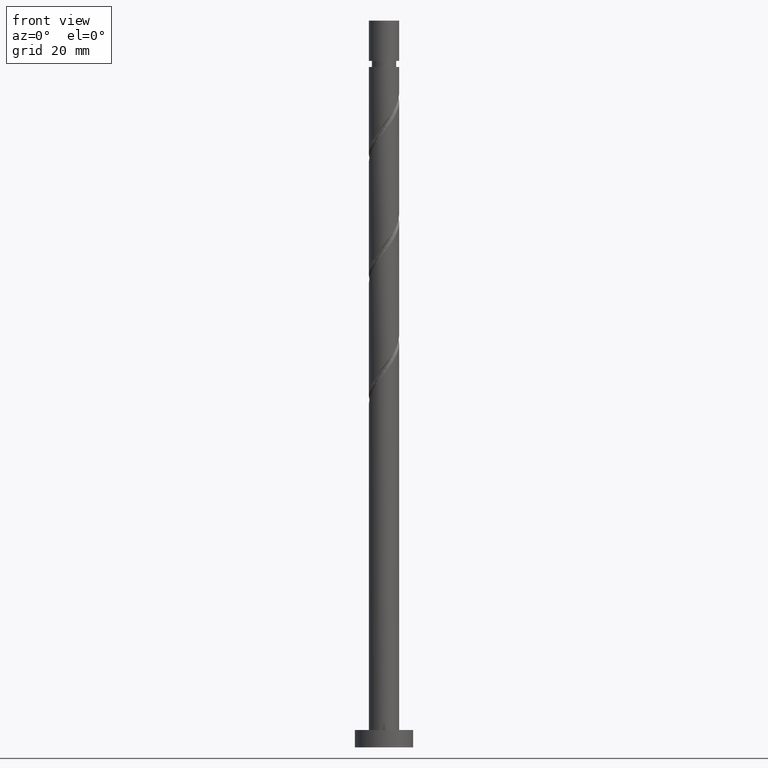
[diagram: clean part render]
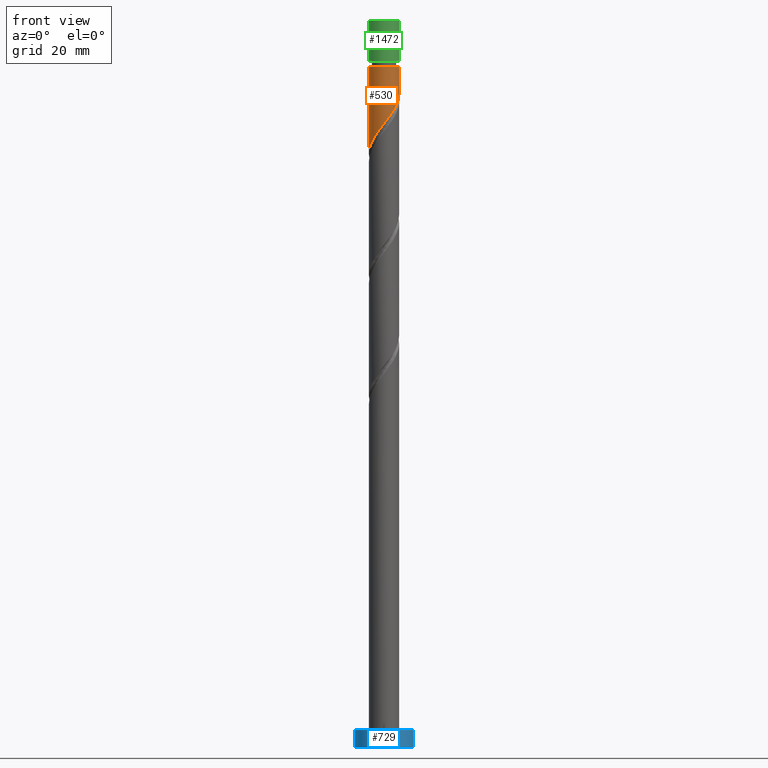
[diagram: same view with three faces highlighted in distinct colors, each labeled with its STEP entity id]
A machine part, front view with three faces highlighted in distinct colors.
Their STEP definitions:

[orange] entity #530 — the highlighted cylindrical surface (edge-blend (fillet) strip) has radius 2.6 mm, axis along (-0, -0, -1).
#11 = CARTESIAN_POINT ( 'NONE',  ( -1.916256930661813795, -1.757259051958636631, 104.5275342190393957 ) ) ;
#32 = CARTESIAN_POINT ( 'NONE',  ( 2.548000000000000043, -0.5173934672954429992, 111.8192008857060529 ) ) ;
#52 = AXIS2_PLACEMENT_3D ( 'NONE', #1224, #363, #605 ) ;
#88 = EDGE_CURVE ( 'NONE', #284, #535, #981, .T. ) ;
#89 = CARTESIAN_POINT ( 'NONE',  ( -0.1138299133485245890, -2.629947074745161206, 107.1317008857060813 ) ) ;
#99 = DIRECTION ( 'NONE',  ( -0.000000000000000000, -0.000000000000000000, -1.000000000000000000 ) ) ;
#114 = EDGE_CURVE ( 'NONE', #542, #284, #401, .T. ) ;
#170 = VERTEX_POINT ( 'NONE', #175 ) ;
#175 = CARTESIAN_POINT ( 'NONE',  ( 2.600000000000000533, 1.394358558838141110E-15, 112.4840033271763389 ) ) ;
#228 = CARTESIAN_POINT ( 'NONE',  ( -2.600000000000000533, -0.1481317173607224480, 102.2568477497169397 ) ) ;
#233 = CARTESIAN_POINT ( 'NONE',  ( -2.194579422111507583, -1.453753770477751894, 104.0067008857060671 ) ) ;
#284 = VERTEX_POINT ( 'NONE', #1159 ) ;
#310 = CARTESIAN_POINT ( 'NONE',  ( 2.466052925254840211, -0.9209570212423616731, 111.2983675523727669 ) ) ;
#331 = LINE ( 'NONE', #1434, #738 ) ;
#356 = DIRECTION ( 'NONE',  ( -0.000000000000000000, -0.000000000000000000, -1.000000000000000000 ) ) ;
#363 = DIRECTION ( 'NONE',  ( -0.000000000000000000, -0.000000000000000000, -1.000000000000000000 ) ) ;
#381 = CARTESIAN_POINT ( 'NONE',  ( 0.000000000000000000, 0.000000000000000000, 125.0000000000000000 ) ) ;
#401 = CIRCLE ( 'NONE', #52, 2.599999999999998312 ) ;
#420 = VECTOR ( 'NONE', #1360, 1000.000000000000000 ) ;
#423 = CARTESIAN_POINT ( 'NONE',  ( 1.453753770477751894, -2.194579422111507583, 109.2150342190394099 ) ) ;
#438 = CARTESIAN_POINT ( 'NONE',  ( 0.2953048731074914834, -2.583175377692922048, 107.6525342190394241 ) ) ;
#448 = ORIENTED_EDGE ( 'NONE', *, *, #942, .F. ) ;
#485 = CARTESIAN_POINT ( 'NONE',  ( -2.365491551376095458, -1.079096715020629427, 103.4858675523727243 ) ) ;
#530 = ADVANCED_FACE ( 'NONE', ( #960 ), #1339, .T. ) ;
#535 = VERTEX_POINT ( 'NONE', #1322 ) ;
#542 = VERTEX_POINT ( 'NONE', #1567 ) ;
#564 = CARTESIAN_POINT ( 'NONE',  ( -1.279445730227240396, -2.263408629347180678, 105.5692008857060671 ) ) ;
#570 = CARTESIAN_POINT ( 'NONE',  ( 2.060764333439522034, -1.637934439212119564, 110.2567008857060671 ) ) ;
#605 = DIRECTION ( 'NONE',  ( -1.000000000000000000, 0.000000000000000000, 0.000000000000000000 ) ) ;
#623 = DIRECTION ( 'NONE',  ( -1.000000000000000000, 0.000000000000000000, 0.000000000000000000 ) ) ;
#666 = CARTESIAN_POINT ( 'NONE',  ( 1.757259051958636631, -1.916256930661813795, 109.7358675523727385 ) ) ;
#701 = CARTESIAN_POINT ( 'NONE',  ( -2.600000000000000533, -1.679227511719051496E-15, 102.0673366605096390 ) ) ;
#707 = CARTESIAN_POINT ( 'NONE',  ( -2.583175377692922048, -0.2953048731074915945, 102.4442008857060813 ) ) ;
#714 = EDGE_LOOP ( 'NONE', ( #768, #1029, #1465, #448 ) ) ;
#738 = VECTOR ( 'NONE', #99, 1000.000000000000000 ) ;
#768 = ORIENTED_EDGE ( 'NONE', *, *, #1196, .F. ) ;
#781 = CARTESIAN_POINT ( 'NONE',  ( 1.079096715020629427, -2.365491551376095458, 108.6942008857060671 ) ) ;
#817 = CARTESIAN_POINT ( 'NONE',  ( -2.536403680640683778, -0.7044396595635079583, 102.9650342190393957 ) ) ;
#912 = CARTESIAN_POINT ( 'NONE',  ( -0.5173934672954428882, -2.548000000000000043, 106.6108675523727101 ) ) ;
#942 = EDGE_CURVE ( 'NONE', #170, #535, #1311, .T. ) ;
#953 = CARTESIAN_POINT ( 'NONE',  ( -2.600000000000000089, 0.000000000000000000, 125.0000000000000000 ) ) ;
#960 = FACE_OUTER_BOUND ( 'NONE', #714, .T. ) ;
#981 = LINE ( 'NONE', #953, #420 ) ;
#1029 = ORIENTED_EDGE ( 'NONE', *, *, #114, .T. ) ;
#1042 = CARTESIAN_POINT ( 'NONE',  ( -1.637934439212119564, -2.060764333439522034, 105.0483675523727669 ) ) ;
#1113 = CARTESIAN_POINT ( 'NONE',  ( 2.600000000000000533, 1.394358558838141110E-15, 112.4840033271763389 ) ) ;
#1159 = CARTESIAN_POINT ( 'NONE',  ( -2.599999999999998312, 0.000000000000000000, 117.0275342190393815 ) ) ;
#1163 = CARTESIAN_POINT ( 'NONE',  ( -0.9209570212423614510, -2.466052925254840211, 106.0900342190393673 ) ) ;
#1196 = EDGE_CURVE ( 'NONE', #542, #170, #331, .T. ) ;
#1200 = CARTESIAN_POINT ( 'NONE',  ( 2.600000000000003197, -0.2613098319673822223, 112.1496987517684971 ) ) ;
#1224 = CARTESIAN_POINT ( 'NONE',  ( 0.000000000000000000, 0.000000000000000000, 117.0275342190393815 ) ) ;
#1279 = CARTESIAN_POINT ( 'NONE',  ( 0.7044396595635075142, -2.536403680640683778, 108.1733675523727243 ) ) ;
#1311 =( BOUNDED_CURVE ( )  B_SPLINE_CURVE ( 2, ( #1113, #1200, #32, #310, #1423, #570, #666, #423, #781, #1279, #438, #89, #912, #1163, #564, #1042, #11, #233, #485, #817, #707, #228, #701 ),
 .UNSPECIFIED., .F., .T. ) 
 B_SPLINE_CURVE_WITH_KNOTS ( ( 3, 2, 2, 2, 2, 2, 2, 2, 2, 2, 2, 3 ),
 ( 0.3045322023138547496, 0.3125000000000000000, 0.3250000000000000111, 0.3375000000000000222, 0.3499999999999999778, 0.3624999999999999889, 0.3750000000000000000, 0.3875000000000000111, 0.4000000000000000222, 0.4124999999999999778, 0.4249999999999999889, 0.4295322023138552492 ),
 .UNSPECIFIED. ) 
 CURVE ( )  GEOMETRIC_REPRESENTATION_ITEM ( )  RATIONAL_B_SPLINE_CURVE ( ( 0.9039174447099344034, 0.9019565955404630353, 0.9090909090909118362, 0.8978984914501279002, 0.9090909090909118362, 0.8978984914501279002, 0.9090909090909118362, 0.8978984914501279002, 0.9090909090909118362, 0.8978984914501279002, 0.9090909090909118362, 0.8978984914501279002, 0.9090909090909118362, 0.8978984914501279002, 0.9090909090909118362, 0.8978984914501279002, 0.9090909090909118362, 0.8978984914501279002, 0.9090909090909118362, 0.8978984914501279002, 0.9090909090909118362, 0.9050328050005762570, 0.9039174447099341814 ) ) 
 REPRESENTATION_ITEM ( '' )  );
#1322 = CARTESIAN_POINT ( 'NONE',  ( -2.600000000000000533, -1.679227511719051496E-15, 102.0673366605096390 ) ) ;
#1339 = CYLINDRICAL_SURFACE ( 'NONE', #1492, 2.600000000000000089 ) ;
#1360 = DIRECTION ( 'NONE',  ( -0.000000000000000000, -0.000000000000000000, -1.000000000000000000 ) ) ;
#1423 = CARTESIAN_POINT ( 'NONE',  ( 2.263408629347180678, -1.279445730227240396, 110.7775342190393815 ) ) ;
#1434 = CARTESIAN_POINT ( 'NONE',  ( 2.600000000000000089, 3.184081677783117698E-16, 125.0000000000000000 ) ) ;
#1465 = ORIENTED_EDGE ( 'NONE', *, *, #88, .T. ) ;
#1492 = AXIS2_PLACEMENT_3D ( 'NONE', #381, #356, #623 ) ;
#1567 = CARTESIAN_POINT ( 'NONE',  ( 2.599999999999998312, 3.184081677783116712E-16, 117.0275342190393815 ) ) ;

[blue] entity #729 — the highlighted cylindrical surface (edge-blend (fillet) strip) has radius 5 mm, axis along (-0, -0, -1).
#74 = EDGE_LOOP ( 'NONE', ( #1154, #199, #1501, #197 ) ) ;
#197 = ORIENTED_EDGE ( 'NONE', *, *, #412, .T. ) ;
#199 = ORIENTED_EDGE ( 'NONE', *, *, #1300, .F. ) ;
#210 = CARTESIAN_POINT ( 'NONE',  ( 0.000000000000000000, 0.000000000000000000, 0.000000000000000000 ) ) ;
#216 = VERTEX_POINT ( 'NONE', #1013 ) ;
#218 = LINE ( 'NONE', #702, #1174 ) ;
#275 = VERTEX_POINT ( 'NONE', #1511 ) ;
#297 = CIRCLE ( 'NONE', #473, 5.000000000000000000 ) ;
#375 = DIRECTION ( 'NONE',  ( 1.000000000000000000, 0.000000000000000000, 0.000000000000000000 ) ) ;
#412 = EDGE_CURVE ( 'NONE', #628, #275, #1199, .T. ) ;
#434 = LINE ( 'NONE', #821, #968 ) ;
#461 = EDGE_CURVE ( 'NONE', #216, #628, #434, .T. ) ;
#473 = AXIS2_PLACEMENT_3D ( 'NONE', #1570, #1319, #375 ) ;
#511 = DIRECTION ( 'NONE',  ( -0.000000000000000000, -0.000000000000000000, -1.000000000000000000 ) ) ;
#572 = AXIS2_PLACEMENT_3D ( 'NONE', #1344, #511, #956 ) ;
#627 = CYLINDRICAL_SURFACE ( 'NONE', #572, 5.000000000000000000 ) ;
#628 = VERTEX_POINT ( 'NONE', #876 ) ;
#702 = CARTESIAN_POINT ( 'NONE',  ( 5.000000000000000000, 6.123233995736766282E-16, 3.000000000000000000 ) ) ;
#716 = FACE_OUTER_BOUND ( 'NONE', #74, .T. ) ;
#729 = ADVANCED_FACE ( 'NONE', ( #716 ), #627, .T. ) ;
#821 = CARTESIAN_POINT ( 'NONE',  ( -5.000000000000000000, 0.000000000000000000, 3.000000000000000000 ) ) ;
#876 = CARTESIAN_POINT ( 'NONE',  ( -5.000000000000000000, 0.000000000000000000, 0.000000000000000000 ) ) ;
#907 = DIRECTION ( 'NONE',  ( -0.000000000000000000, -0.000000000000000000, -1.000000000000000000 ) ) ;
#916 = EDGE_CURVE ( 'NONE', #1484, #275, #218, .T. ) ;
#940 = DIRECTION ( 'NONE',  ( 1.000000000000000000, 0.000000000000000000, 0.000000000000000000 ) ) ;
#956 = DIRECTION ( 'NONE',  ( -1.000000000000000000, 0.000000000000000000, 0.000000000000000000 ) ) ;
#968 = VECTOR ( 'NONE', #907, 1000.000000000000000 ) ;
#1013 = CARTESIAN_POINT ( 'NONE',  ( -5.000000000000000000, 0.000000000000000000, 3.000000000000000000 ) ) ;
#1154 = ORIENTED_EDGE ( 'NONE', *, *, #916, .F. ) ;
#1169 = DIRECTION ( 'NONE',  ( 0.000000000000000000, 0.000000000000000000, 1.000000000000000000 ) ) ;
#1174 = VECTOR ( 'NONE', #1562, 1000.000000000000000 ) ;
#1199 = CIRCLE ( 'NONE', #1226, 5.000000000000000000 ) ;
#1226 = AXIS2_PLACEMENT_3D ( 'NONE', #210, #1169, #940 ) ;
#1300 = EDGE_CURVE ( 'NONE', #216, #1484, #297, .T. ) ;
#1319 = DIRECTION ( 'NONE',  ( 0.000000000000000000, 0.000000000000000000, 1.000000000000000000 ) ) ;
#1344 = CARTESIAN_POINT ( 'NONE',  ( 0.000000000000000000, 0.000000000000000000, 3.000000000000000000 ) ) ;
#1391 = CARTESIAN_POINT ( 'NONE',  ( 5.000000000000000000, 6.123233995736766282E-16, 3.000000000000000000 ) ) ;
#1484 = VERTEX_POINT ( 'NONE', #1391 ) ;
#1501 = ORIENTED_EDGE ( 'NONE', *, *, #461, .T. ) ;
#1511 = CARTESIAN_POINT ( 'NONE',  ( 5.000000000000000000, 6.123233995736766282E-16, 0.000000000000000000 ) ) ;
#1562 = DIRECTION ( 'NONE',  ( -0.000000000000000000, -0.000000000000000000, -1.000000000000000000 ) ) ;
#1570 = CARTESIAN_POINT ( 'NONE',  ( 0.000000000000000000, 0.000000000000000000, 3.000000000000000000 ) ) ;

[green] entity #1472 — the highlighted cylindrical surface (edge-blend (fillet) strip) has radius 2.6 mm, axis along (-0, -0, -1).
#16 = EDGE_CURVE ( 'NONE', #549, #252, #528, .T. ) ;
#45 = CARTESIAN_POINT ( 'NONE',  ( -2.599999999999998312, 0.000000000000000000, 118.0675342190393877 ) ) ;
#110 = CARTESIAN_POINT ( 'NONE',  ( 0.000000000000000000, 0.000000000000000000, 118.0675342190393877 ) ) ;
#143 = ORIENTED_EDGE ( 'NONE', *, *, #16, .F. ) ;
#166 = LINE ( 'NONE', #724, #1257 ) ;
#215 = DIRECTION ( 'NONE',  ( -0.000000000000000000, -0.000000000000000000, -1.000000000000000000 ) ) ;
#252 = VERTEX_POINT ( 'NONE', #429 ) ;
#300 = EDGE_CURVE ( 'NONE', #1179, #598, #648, .T. ) ;
#355 = CARTESIAN_POINT ( 'NONE',  ( 2.600000000000000089, 3.184081677783117698E-16, 125.0000000000000000 ) ) ;
#373 = DIRECTION ( 'NONE',  ( 1.000000000000000000, 0.000000000000000000, 0.000000000000000000 ) ) ;
#386 = ORIENTED_EDGE ( 'NONE', *, *, #1133, .F. ) ;
#429 = CARTESIAN_POINT ( 'NONE',  ( 2.600000000000000089, 3.184081677783117698E-16, 125.0000000000000000 ) ) ;
#484 = CARTESIAN_POINT ( 'NONE',  ( 0.000000000000000000, 0.000000000000000000, 125.0000000000000000 ) ) ;
#523 = AXIS2_PLACEMENT_3D ( 'NONE', #1247, #543, #1483 ) ;
#528 = CIRCLE ( 'NONE', #999, 2.600000000000000089 ) ;
#543 = DIRECTION ( 'NONE',  ( -0.000000000000000000, -0.000000000000000000, -1.000000000000000000 ) ) ;
#549 = VERTEX_POINT ( 'NONE', #596 ) ;
#592 = VECTOR ( 'NONE', #858, 1000.000000000000000 ) ;
#596 = CARTESIAN_POINT ( 'NONE',  ( -2.600000000000000089, 0.000000000000000000, 125.0000000000000000 ) ) ;
#598 = VERTEX_POINT ( 'NONE', #45 ) ;
#644 = CYLINDRICAL_SURFACE ( 'NONE', #523, 2.600000000000000089 ) ;
#648 = CIRCLE ( 'NONE', #1308, 2.599999999999998312 ) ;
#711 = EDGE_CURVE ( 'NONE', #549, #598, #166, .T. ) ;
#724 = CARTESIAN_POINT ( 'NONE',  ( -2.600000000000000089, 0.000000000000000000, 125.0000000000000000 ) ) ;
#728 = ORIENTED_EDGE ( 'NONE', *, *, #711, .T. ) ;
#735 = DIRECTION ( 'NONE',  ( 0.000000000000000000, 0.000000000000000000, 1.000000000000000000 ) ) ;
#828 = CARTESIAN_POINT ( 'NONE',  ( 2.599999999999998312, 3.184081677783116712E-16, 118.0675342190393877 ) ) ;
#833 = DIRECTION ( 'NONE',  ( -0.000000000000000000, -0.000000000000000000, -1.000000000000000000 ) ) ;
#858 = DIRECTION ( 'NONE',  ( -0.000000000000000000, -0.000000000000000000, -1.000000000000000000 ) ) ;
#873 = EDGE_LOOP ( 'NONE', ( #386, #143, #728, #1525 ) ) ;
#999 = AXIS2_PLACEMENT_3D ( 'NONE', #484, #735, #373 ) ;
#1115 = FACE_OUTER_BOUND ( 'NONE', #873, .T. ) ;
#1133 = EDGE_CURVE ( 'NONE', #252, #1179, #1203, .T. ) ;
#1179 = VERTEX_POINT ( 'NONE', #828 ) ;
#1203 = LINE ( 'NONE', #355, #592 ) ;
#1247 = CARTESIAN_POINT ( 'NONE',  ( 0.000000000000000000, 0.000000000000000000, 125.0000000000000000 ) ) ;
#1257 = VECTOR ( 'NONE', #833, 1000.000000000000000 ) ;
#1299 = DIRECTION ( 'NONE',  ( -1.000000000000000000, 0.000000000000000000, 0.000000000000000000 ) ) ;
#1308 = AXIS2_PLACEMENT_3D ( 'NONE', #110, #215, #1299 ) ;
#1472 = ADVANCED_FACE ( 'NONE', ( #1115 ), #644, .T. ) ;
#1483 = DIRECTION ( 'NONE',  ( -1.000000000000000000, 0.000000000000000000, 0.000000000000000000 ) ) ;
#1525 = ORIENTED_EDGE ( 'NONE', *, *, #300, .F. ) ;